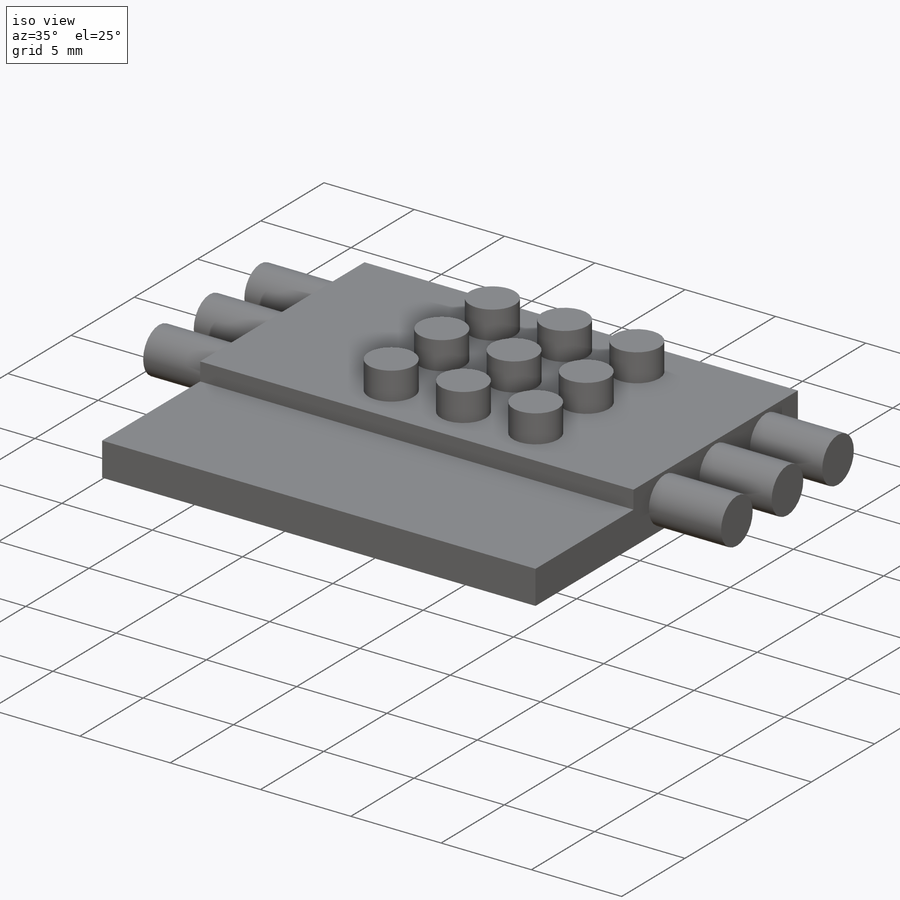
[diagram: iso view]
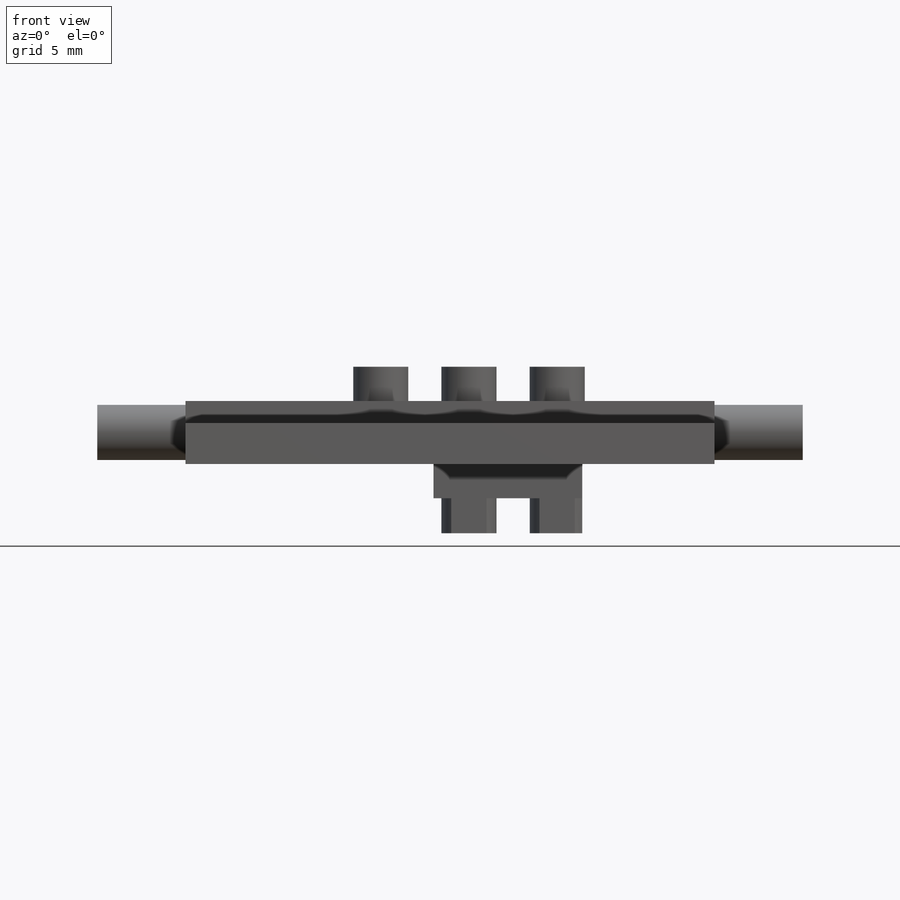
[diagram: front view]
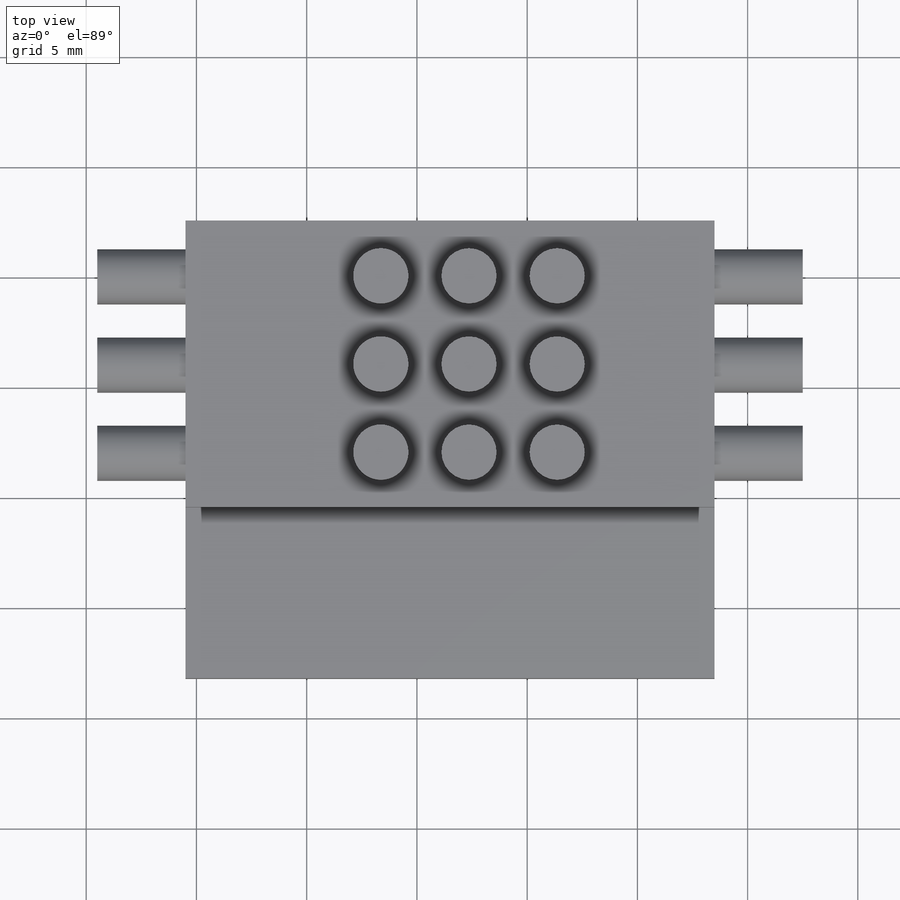
[diagram: top view]
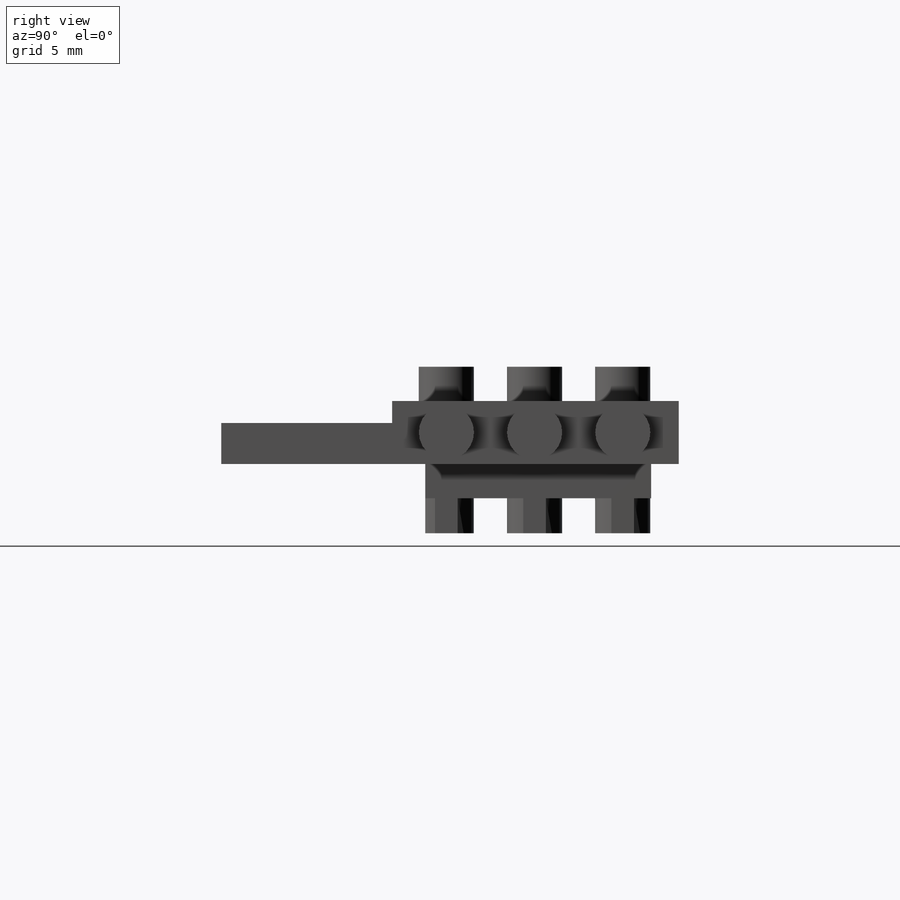
[diagram: right view]
SOLIDWORKS PART (.sldprt)
format: sldprt  version: not decoded by parser v0  size: 328,192 bytes
history: native  units: mm
features: sketch x8, extrude x4, cut_extrude x4, plane x2, material x1 (+11 scaffold rows collapsed)
feature tree (30):
  scaffold x11  (default folders/planes/origin — collapsed)
  material  "Copper"
  plane  "Plane2"  Offset=1.5875mm
  sketch  "Sketch3"
  extrude  "Boss-Extrude2"  Depth=4.4125mm
  plane  "Plane3"  Offset=1.55mm
  sketch  "Sketch5"  dims[D3=1.115mm D1=3.0 D2=3.0]
  extrude  "Boss-Extrude3"  Depth=3.1375mm ModelUUID=0mm UUID=0mm
  sketch  "Sketch6"
  extrude  "Boss-Extrude4"  Depth=6mm
  sketch  "Sketch11"
  cut_extrude  "Cut-Extrude1"  Depth=4.1425mm
  sketch  "Sketch12"
  cut_extrude  "Cut-Extrude2"  Depth=1mm
  sketch  "Sketch13"  dims[D1=2.5mm]
  extrude  "Boss-Extrude8"  Depth=4mm
  sketch  "Sketch14"
  cut_extrude  "Cut-Extrude3"  [1 undecoded]
  sketch  "Sketch15"
  cut_extrude  "Cut-Extrude4"  [1 undecoded]
decode coverage: 8 of 16 modeling features carry decoded parameters
note: 2 parameter values undecoded
note: suppression state not decoded; provenance and decode notes live in map.json
